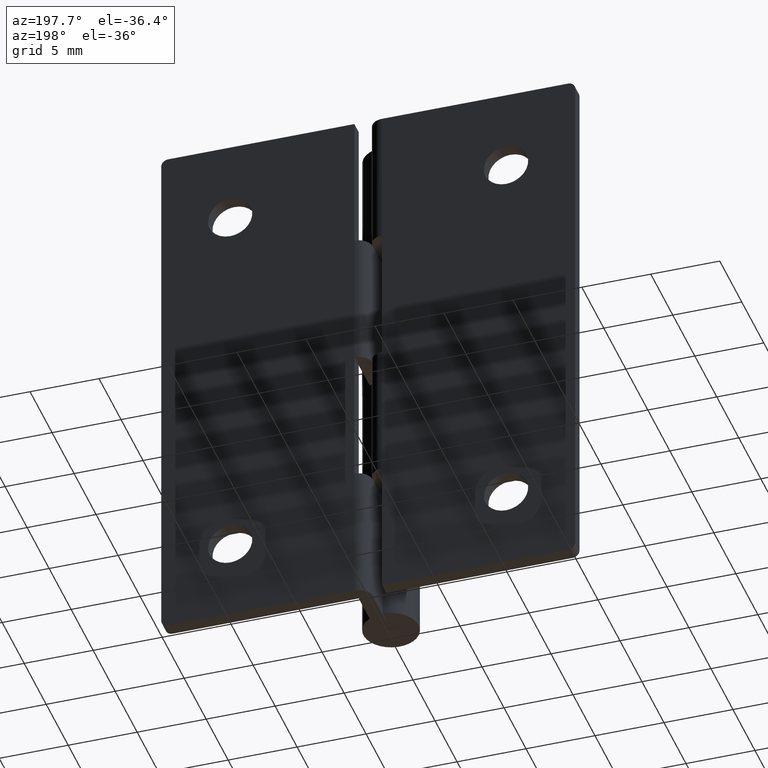
[diagram: clean part render]
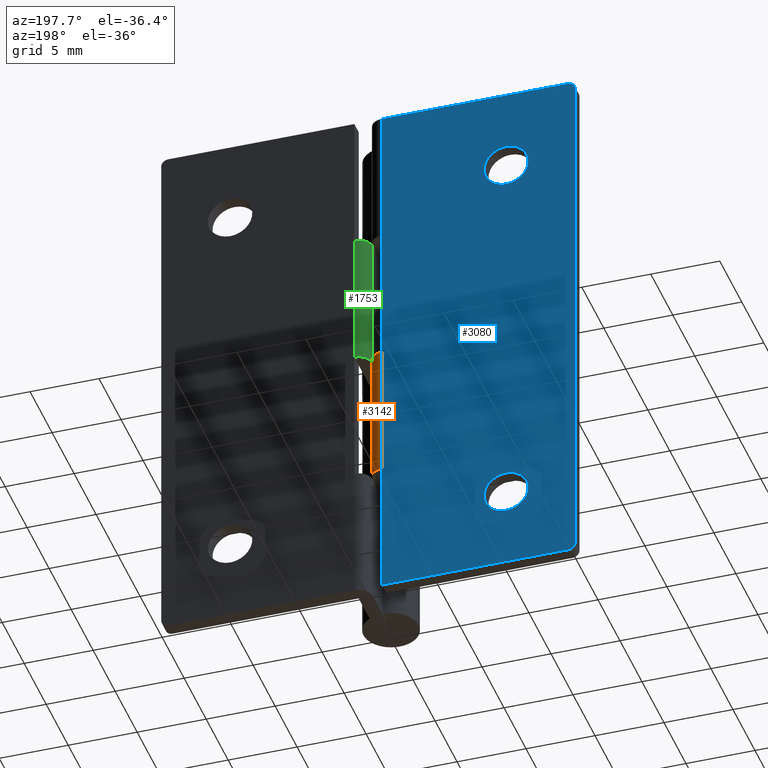
[diagram: same view with three faces highlighted in distinct colors, each labeled with its STEP entity id]
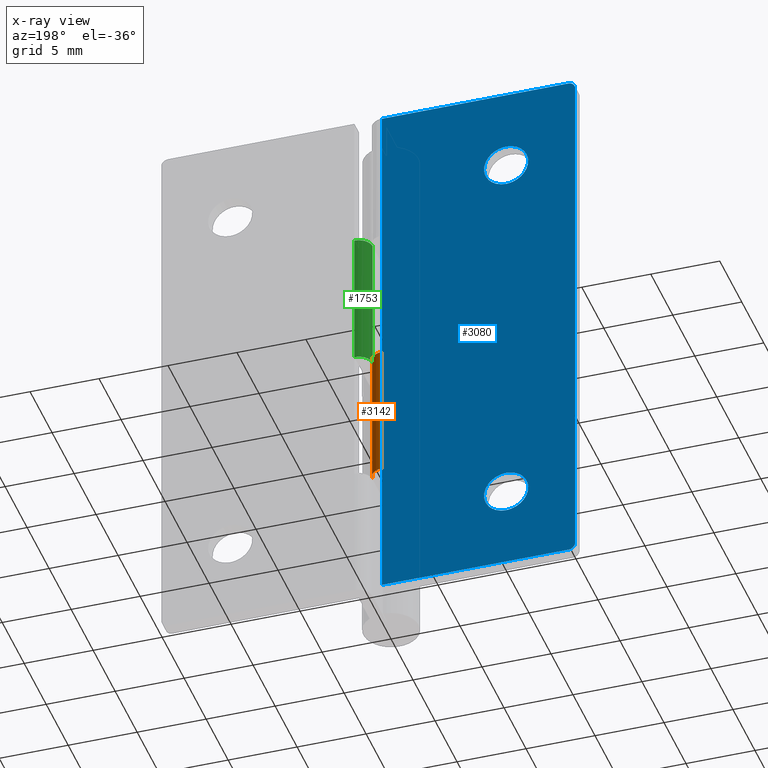
[diagram: x-ray of the same camera — body ghosted, the three highlighted faces saturated]
A machine part, auxiliary view with three faces highlighted in distinct colors.
The next image is the same camera in x-ray (body ghosted, the three faces saturated) — at least one of them is partly hidden behind the body in this view.
Their STEP definitions:

[orange] entity #3142 — the highlighted face is a freeform B-spline surface patch.
#2393=CARTESIAN_POINT('',(-1.000003999999976,5.200000000000000,9.999991999999999));
#2394=VERTEX_POINT('',#2393);
#2400=CARTESIAN_POINT('',(-4.336809E-016,4.200000000000000,9.999991999999999));
#2401=VERTEX_POINT('',#2400);
#2402=CARTESIAN_POINT('',(-1.000003999999976,5.200000000000000,9.999991999999999));
#2403=CARTESIAN_POINT('',(-0.585789266056841,5.200001656850925,9.999991999999999));
#2404=CARTESIAN_POINT('',(-0.292894633028421,4.907108195398688,9.999991999999999));
#2405=CARTESIAN_POINT('',(0.0,4.614214733946447,9.999991999999999));
#2406=CARTESIAN_POINT('',(0.0,4.200000000000000,9.999991999999999));
#2414=(BOUNDED_CURVE()B_SPLINE_CURVE(2,(#2402,#2403,#2404,#2405,#2406),.UNSPECIFIED.,.F.,.U.)B_SPLINE_CURVE_WITH_KNOTS((3,2,3),(0.0,0.500000000000000,1.0),.UNSPECIFIED.)CURVE()GEOMETRIC_REPRESENTATION_ITEM()RATIONAL_B_SPLINE_CURVE((1.0,0.923879149827395,1.0,0.923879149827395,1.0))REPRESENTATION_ITEM(''));
#2415=EDGE_CURVE('',#2394,#2401,#2414,.T.);
#2654=CARTESIAN_POINT('',(-4.336809E-016,4.200000000000000,20.0));
#2655=VERTEX_POINT('',#2654);
#2661=CARTESIAN_POINT('',(-1.000003999999976,5.200000000000000,20.0));
#2662=VERTEX_POINT('',#2661);
#2663=CARTESIAN_POINT('',(-1.000003999999976,5.200000000000000,20.0));
#2664=CARTESIAN_POINT('',(-0.585789266056841,5.200001656850925,20.000000000000004));
#2665=CARTESIAN_POINT('',(-0.292894633028421,4.907108195398688,20.0));
#2666=CARTESIAN_POINT('',(0.0,4.614214733946447,20.000000000000004));
#2667=CARTESIAN_POINT('',(0.0,4.200000000000000,20.0));
#2675=(BOUNDED_CURVE()B_SPLINE_CURVE(2,(#2663,#2664,#2665,#2666,#2667),.UNSPECIFIED.,.F.,.U.)B_SPLINE_CURVE_WITH_KNOTS((3,2,3),(0.0,0.500000000000000,1.0),.UNSPECIFIED.)CURVE()GEOMETRIC_REPRESENTATION_ITEM()RATIONAL_B_SPLINE_CURVE((1.0,0.923879149827395,1.0,0.923879149827395,1.0))REPRESENTATION_ITEM(''));
#2676=EDGE_CURVE('',#2662,#2655,#2675,.T.);
#3060=CARTESIAN_POINT('',(-1.000003999999976,5.200000000000000,20.0));
#3061=CARTESIAN_POINT('',(-1.000003999999976,5.200000000000000,9.999991999999999));
#3062=QUASI_UNIFORM_CURVE('',1,(#3060,#3061),.UNSPECIFIED.,.F.,.U.);
#3063=EDGE_CURVE('',#2662,#2394,#3062,.T.);
#3118=CARTESIAN_POINT('',(-1.043619387365336,5.199048221581858,9.749991799999997));
#3119=CARTESIAN_POINT('',(-1.043619387365336,5.199048221581858,20.256250205000001));
#3120=CARTESIAN_POINT('',(0.076060701200072,5.247934510004509,9.749991799999997));
#3121=CARTESIAN_POINT('',(0.076060701200072,5.247934510004509,20.256250205000004));
#3122=CARTESIAN_POINT('',(-0.002457113918337,4.129941521370586,9.749991799999997));
#3123=CARTESIAN_POINT('',(-0.002457113918337,4.129941521370586,20.256250205000001));
#3131=(BOUNDED_SURFACE()B_SPLINE_SURFACE(1,2,((#3118,#3120,#3122),(#3119,#3121,#3123)),.UNSPECIFIED.,.F.,.F.,.U.)B_SPLINE_SURFACE_WITH_KNOTS((2,2),(3,3),(0.0,10.506258405000009),(0.0,0.994386852711532),.UNSPECIFIED.)GEOMETRIC_REPRESENTATION_ITEM()RATIONAL_B_SPLINE_SURFACE(((1.0,0.664513811577279,0.996233733222273),(1.0,0.664513811577279,0.996233733222273)))REPRESENTATION_ITEM('')SURFACE());
#3132=ORIENTED_EDGE('',*,*,#2415,.F.);
#3133=ORIENTED_EDGE('',*,*,#3063,.F.);
#3134=ORIENTED_EDGE('',*,*,#2676,.T.);
#3135=CARTESIAN_POINT('',(-4.336809E-016,4.200000000000000,9.999991999999999));
#3136=CARTESIAN_POINT('',(-4.336809E-016,4.200000000000000,20.0));
#3137=QUASI_UNIFORM_CURVE('',1,(#3135,#3136),.UNSPECIFIED.,.F.,.U.);
#3138=EDGE_CURVE('',#2401,#2655,#3137,.T.);
#3139=ORIENTED_EDGE('',*,*,#3138,.F.);
#3140=EDGE_LOOP('',(#3132,#3133,#3134,#3139));
#3141=FACE_OUTER_BOUND('',#3140,.T.);
#3142=ADVANCED_FACE('',(#3141),#3131,.T.);

[blue] entity #3080 — the highlighted face is a freeform B-spline surface patch.
#1890=CARTESIAN_POINT('',(-10.0,5.200000000000000,35.600008000000003));
#1891=VERTEX_POINT('',#1890);
#1892=CARTESIAN_POINT('',(-11.595067733972201,5.200000000000001,34.125542553174803));
#1893=VERTEX_POINT('',#1892);
#1894=CARTESIAN_POINT('',(-10.0,5.200000000000000,35.600008000000003));
#1895=CARTESIAN_POINT('',(-11.479024786634074,5.200000000000001,35.600007999999995));
#1896=CARTESIAN_POINT('',(-11.595067733972201,5.200000000000001,34.125542553174796));
#1904=(BOUNDED_CURVE()B_SPLINE_CURVE(2,(#1894,#1895,#1896),.UNSPECIFIED.,.F.,.U.)B_SPLINE_CURVE_WITH_KNOTS((3,3),(0.0,0.236331300630565),.UNSPECIFIED.)CURVE()GEOMETRIC_REPRESENTATION_ITEM()RATIONAL_B_SPLINE_CURVE((1.0,0.723120658607777,0.969723356167220))REPRESENTATION_ITEM(''));
#1905=EDGE_CURVE('',#1891,#1893,#1904,.T.);
#1907=CARTESIAN_POINT('',(-8.404932266027803,5.199999999999999,33.874473446825213));
#1908=VERTEX_POINT('',#1907);
#1909=CARTESIAN_POINT('',(-8.404932266027803,5.199999999999999,33.874473446825206));
#1910=CARTESIAN_POINT('',(-8.400000000000000,5.200000000000001,33.937143828777430));
#1911=CARTESIAN_POINT('',(-8.400000000000000,5.200000000000000,34.000008000000001));
#1912=CARTESIAN_POINT('',(-8.400000000000000,5.199999999999999,35.600007999999995));
#1913=CARTESIAN_POINT('',(-10.0,5.200000000000000,35.600008000000003));
#1921=(BOUNDED_CURVE()B_SPLINE_CURVE(2,(#1909,#1910,#1911,#1912,#1913),.UNSPECIFIED.,.F.,.U.)B_SPLINE_CURVE_WITH_KNOTS((3,2,3),(0.736331300630565,0.750000000000000,1.0),.UNSPECIFIED.)CURVE()GEOMETRIC_REPRESENTATION_ITEM()RATIONAL_B_SPLINE_CURVE((0.969723356167220,0.983986122578771,1.0,0.707106781186548,1.0))REPRESENTATION_ITEM(''));
#1922=EDGE_CURVE('',#1908,#1891,#1921,.T.);
#1989=CARTESIAN_POINT('',(-10.0,5.200000000000000,32.400008000000000));
#1990=VERTEX_POINT('',#1989);
#1991=CARTESIAN_POINT('',(-11.595067733972199,5.200000000000002,34.125542553174796));
#1992=CARTESIAN_POINT('',(-11.600000000000000,5.200000000000000,34.062872171222565));
#1993=CARTESIAN_POINT('',(-11.600000000000000,5.200000000000000,34.000008000000001));
#1994=CARTESIAN_POINT('',(-11.600000000000001,5.199999999999999,32.400008000000000));
#1995=CARTESIAN_POINT('',(-10.0,5.200000000000000,32.400008000000000));
#2003=(BOUNDED_CURVE()B_SPLINE_CURVE(2,(#1991,#1992,#1993,#1994,#1995),.UNSPECIFIED.,.F.,.U.)B_SPLINE_CURVE_WITH_KNOTS((3,2,3),(0.236331300630565,0.250000000000000,0.500000000000000),.UNSPECIFIED.)CURVE()GEOMETRIC_REPRESENTATION_ITEM()RATIONAL_B_SPLINE_CURVE((0.969723356167220,0.983986122578771,1.0,0.707106781186548,1.0))REPRESENTATION_ITEM(''));
#2004=EDGE_CURVE('',#1893,#1990,#2003,.T.);
#2038=CARTESIAN_POINT('',(-10.0,5.200000000000000,32.400008000000000));
#2039=CARTESIAN_POINT('',(-8.520975213365921,5.200000000000000,32.400008000000000));
#2040=CARTESIAN_POINT('',(-8.404932266027803,5.199999999999999,33.874473446825206));
#2048=(BOUNDED_CURVE()B_SPLINE_CURVE(2,(#2038,#2039,#2040),.UNSPECIFIED.,.F.,.U.)B_SPLINE_CURVE_WITH_KNOTS((3,3),(0.500000000000000,0.736331300630566),.UNSPECIFIED.)CURVE()GEOMETRIC_REPRESENTATION_ITEM()RATIONAL_B_SPLINE_CURVE((1.0,0.723120658607776,0.969723356167222))REPRESENTATION_ITEM(''));
#2049=EDGE_CURVE('',#1990,#1908,#2048,.T.);
#2072=CARTESIAN_POINT('',(-10.0,5.200000000000000,7.600000000000000));
#2073=VERTEX_POINT('',#2072);
#2074=CARTESIAN_POINT('',(-11.595067733972201,5.200000000000001,6.125534553174797));
#2075=VERTEX_POINT('',#2074);
#2076=CARTESIAN_POINT('',(-10.0,5.200000000000000,7.600000000000000));
#2077=CARTESIAN_POINT('',(-11.479024786634076,5.200000000000001,7.599999999999999));
#2078=CARTESIAN_POINT('',(-11.595067733972201,5.200000000000001,6.125534553174797));
#2086=(BOUNDED_CURVE()B_SPLINE_CURVE(2,(#2076,#2077,#2078),.UNSPECIFIED.,.F.,.U.)B_SPLINE_CURVE_WITH_KNOTS((3,3),(0.0,0.236331300630565),.UNSPECIFIED.)CURVE()GEOMETRIC_REPRESENTATION_ITEM()RATIONAL_B_SPLINE_CURVE((1.0,0.723120658607776,0.969723356167220))REPRESENTATION_ITEM(''));
#2087=EDGE_CURVE('',#2073,#2075,#2086,.T.);
#2089=CARTESIAN_POINT('',(-8.404932266027803,5.200000000000000,5.874465446825204));
#2090=VERTEX_POINT('',#2089);
#2091=CARTESIAN_POINT('',(-8.404932266027803,5.199999999999999,5.874465446825204));
#2092=CARTESIAN_POINT('',(-8.400000000000000,5.200000000000000,5.937135828777437));
#2093=CARTESIAN_POINT('',(-8.400000000000000,5.200000000000000,6.0));
#2094=CARTESIAN_POINT('',(-8.400000000000000,5.199999999999999,7.600000000000000));
#2095=CARTESIAN_POINT('',(-10.0,5.200000000000000,7.600000000000000));
#2103=(BOUNDED_CURVE()B_SPLINE_CURVE(2,(#2091,#2092,#2093,#2094,#2095),.UNSPECIFIED.,.F.,.U.)B_SPLINE_CURVE_WITH_KNOTS((3,2,3),(0.736331300630565,0.750000000000000,1.0),.UNSPECIFIED.)CURVE()GEOMETRIC_REPRESENTATION_ITEM()RATIONAL_B_SPLINE_CURVE((0.969723356167221,0.983986122578771,1.0,0.707106781186548,1.0))REPRESENTATION_ITEM(''));
#2104=EDGE_CURVE('',#2090,#2073,#2103,.T.);
#2171=CARTESIAN_POINT('',(-10.0,5.200000000000000,4.400000000000000));
#2172=VERTEX_POINT('',#2171);
#2173=CARTESIAN_POINT('',(-11.595067733972202,5.200000000000001,6.125534553174797));
#2174=CARTESIAN_POINT('',(-11.600000000000005,5.200000000000000,6.062864171222564));
#2175=CARTESIAN_POINT('',(-11.600000000000000,5.200000000000000,6.0));
#2176=CARTESIAN_POINT('',(-11.600000000000001,5.199999999999999,4.400000000000001));
#2177=CARTESIAN_POINT('',(-10.0,5.200000000000000,4.400000000000000));
#2185=(BOUNDED_CURVE()B_SPLINE_CURVE(2,(#2173,#2174,#2175,#2176,#2177),.UNSPECIFIED.,.F.,.U.)B_SPLINE_CURVE_WITH_KNOTS((3,2,3),(0.236331300630565,0.250000000000000,0.500000000000000),.UNSPECIFIED.)CURVE()GEOMETRIC_REPRESENTATION_ITEM()RATIONAL_B_SPLINE_CURVE((0.969723356167220,0.983986122578771,1.0,0.707106781186548,1.0))REPRESENTATION_ITEM(''));
#2186=EDGE_CURVE('',#2075,#2172,#2185,.T.);
#2220=CARTESIAN_POINT('',(-10.0,5.200000000000000,4.400000000000000));
#2221=CARTESIAN_POINT('',(-8.520975213365921,5.200000000000000,4.400000000000001));
#2222=CARTESIAN_POINT('',(-8.404932266027803,5.200000000000001,5.874465446825204));
#2230=(BOUNDED_CURVE()B_SPLINE_CURVE(2,(#2220,#2221,#2222),.UNSPECIFIED.,.F.,.U.)B_SPLINE_CURVE_WITH_KNOTS((3,3),(0.500000000000000,0.736331300630566),.UNSPECIFIED.)CURVE()GEOMETRIC_REPRESENTATION_ITEM()RATIONAL_B_SPLINE_CURVE((1.0,0.723120658607776,0.969723356167222))REPRESENTATION_ITEM(''));
#2231=EDGE_CURVE('',#2172,#2090,#2230,.T.);
#2267=CARTESIAN_POINT('',(-14.500000000000000,5.200000000000000,40.000007999999987));
#2268=VERTEX_POINT('',#2267);
#2274=CARTESIAN_POINT('',(-15.0,5.200000000000000,39.500008000000001));
#2275=VERTEX_POINT('',#2274);
#2276=CARTESIAN_POINT('',(-15.0,5.200000000000000,39.500008000000001));
#2277=CARTESIAN_POINT('',(-15.000000000000009,5.199999999999999,40.000008000000015));
#2278=CARTESIAN_POINT('',(-14.500000000000000,5.200000000000000,40.000008000000001));
#2286=(BOUNDED_CURVE()B_SPLINE_CURVE(2,(#2276,#2277,#2278),.UNSPECIFIED.,.F.,.U.)CURVE()GEOMETRIC_REPRESENTATION_ITEM()QUASI_UNIFORM_CURVE()RATIONAL_B_SPLINE_CURVE((1.0,0.707106781186548,1.0))REPRESENTATION_ITEM(''));
#2287=EDGE_CURVE('',#2275,#2268,#2286,.T.);
#2328=CARTESIAN_POINT('',(-15.0,5.200000000000000,0.499999999999945));
#2329=VERTEX_POINT('',#2328);
#2335=CARTESIAN_POINT('',(-14.500000000000000,5.200000000000000,0.0));
#2336=VERTEX_POINT('',#2335);
#2337=CARTESIAN_POINT('',(-14.500000000000000,5.200000000000000,0.0));
#2338=CARTESIAN_POINT('',(-14.999999999999948,5.200000000000001,0.0));
#2339=CARTESIAN_POINT('',(-15.0,5.200000000000000,0.499999999999945));
#2347=(BOUNDED_CURVE()B_SPLINE_CURVE(2,(#2337,#2338,#2339),.UNSPECIFIED.,.F.,.U.)CURVE()GEOMETRIC_REPRESENTATION_ITEM()QUASI_UNIFORM_CURVE()RATIONAL_B_SPLINE_CURVE((1.0,0.707106781186586,1.0))REPRESENTATION_ITEM(''));
#2348=EDGE_CURVE('',#2336,#2329,#2347,.T.);
#2393=CARTESIAN_POINT('',(-1.000003999999976,5.200000000000000,9.999991999999999));
#2394=VERTEX_POINT('',#2393);
#2480=CARTESIAN_POINT('',(-1.000003999999976,5.200000000000000,0.0));
#2481=VERTEX_POINT('',#2480);
#2487=CARTESIAN_POINT('',(-1.000003999999976,5.200000000000000,0.0));
#2488=CARTESIAN_POINT('',(-1.000003999999976,5.200000000000000,9.999991999999999));
#2489=QUASI_UNIFORM_CURVE('',1,(#2487,#2488),.UNSPECIFIED.,.F.,.U.);
#2490=EDGE_CURVE('',#2481,#2394,#2489,.T.);
#2531=CARTESIAN_POINT('',(-1.0,5.200000000000000,30.0));
#2532=VERTEX_POINT('',#2531);
#2661=CARTESIAN_POINT('',(-1.000003999999976,5.200000000000000,20.0));
#2662=VERTEX_POINT('',#2661);
#2725=CARTESIAN_POINT('',(-1.000003999999976,5.200000000000000,20.0));
#2726=CARTESIAN_POINT('',(-1.0,5.200000000000000,30.0));
#2727=QUASI_UNIFORM_CURVE('',1,(#2725,#2726),.UNSPECIFIED.,.F.,.U.);
#2728=EDGE_CURVE('',#2662,#2532,#2727,.T.);
#2749=CARTESIAN_POINT('',(-1.0,5.200000000000000,40.000007999999987));
#2750=VERTEX_POINT('',#2749);
#2751=CARTESIAN_POINT('',(-1.0,5.200000000000000,40.000007999999987));
#2752=CARTESIAN_POINT('',(-1.0,5.200000000000000,30.0));
#2753=QUASI_UNIFORM_CURVE('',1,(#2751,#2752),.UNSPECIFIED.,.F.,.U.);
#2754=EDGE_CURVE('',#2750,#2532,#2753,.T.);
#2784=CARTESIAN_POINT('',(-14.500000000000000,5.200000000000000,40.000007999999987));
#2785=CARTESIAN_POINT('',(-1.0,5.200000000000000,40.000007999999987));
#2786=QUASI_UNIFORM_CURVE('',1,(#2784,#2785),.UNSPECIFIED.,.F.,.U.);
#2787=EDGE_CURVE('',#2268,#2750,#2786,.T.);
#3029=CARTESIAN_POINT('',(-15.0,5.200000000000000,0.499999999999945));
#3030=CARTESIAN_POINT('',(-15.0,5.200000000000000,39.500008000000001));
#3031=QUASI_UNIFORM_CURVE('',1,(#3029,#3030),.UNSPECIFIED.,.F.,.U.);
#3032=EDGE_CURVE('',#2329,#2275,#3031,.T.);
#3044=CARTESIAN_POINT('',(-15.699299972865280,5.200000000000000,41.998007946580771));
#3045=CARTESIAN_POINT('',(-15.699299972865280,5.200000000000000,-1.998001377092523));
#3046=CARTESIAN_POINT('',(-0.300699651625456,5.200000000000000,41.998007946580771));
#3047=CARTESIAN_POINT('',(-0.300699651625456,5.200000000000000,-1.998001377092523));
#3048=B_SPLINE_SURFACE_WITH_KNOTS('',1,1,((#3044,#3046),(#3045,#3047)),.UNSPECIFIED.,.F.,.F.,.U.,(2,2),(2,2),(0.0,43.996009323673292),(0.0,15.398600321239829),.UNSPECIFIED.);
#3049=CARTESIAN_POINT('',(-14.500000000000000,5.200000000000000,0.0));
#3050=CARTESIAN_POINT('',(-1.000003999999976,5.200000000000000,0.0));
#3051=QUASI_UNIFORM_CURVE('',1,(#3049,#3050),.UNSPECIFIED.,.F.,.U.);
#3052=EDGE_CURVE('',#2336,#2481,#3051,.T.);
#3053=ORIENTED_EDGE('',*,*,#3052,.F.);
#3054=ORIENTED_EDGE('',*,*,#2348,.T.);
#3055=ORIENTED_EDGE('',*,*,#3032,.T.);
#3056=ORIENTED_EDGE('',*,*,#2287,.T.);
#3057=ORIENTED_EDGE('',*,*,#2787,.T.);
#3058=ORIENTED_EDGE('',*,*,#2754,.T.);
#3059=ORIENTED_EDGE('',*,*,#2728,.F.);
#3060=CARTESIAN_POINT('',(-1.000003999999976,5.200000000000000,20.0));
#3061=CARTESIAN_POINT('',(-1.000003999999976,5.200000000000000,9.999991999999999));
#3062=QUASI_UNIFORM_CURVE('',1,(#3060,#3061),.UNSPECIFIED.,.F.,.U.);
#3063=EDGE_CURVE('',#2662,#2394,#3062,.T.);
#3064=ORIENTED_EDGE('',*,*,#3063,.T.);
#3065=ORIENTED_EDGE('',*,*,#2490,.F.);
#3066=EDGE_LOOP('',(#3053,#3054,#3055,#3056,#3057,#3058,#3059,#3064,#3065));
#3067=FACE_OUTER_BOUND('',#3066,.T.);
#3068=ORIENTED_EDGE('',*,*,#2231,.T.);
#3069=ORIENTED_EDGE('',*,*,#2104,.T.);
#3070=ORIENTED_EDGE('',*,*,#2087,.T.);
#3071=ORIENTED_EDGE('',*,*,#2186,.T.);
#3072=EDGE_LOOP('',(#3068,#3069,#3070,#3071));
#3073=FACE_BOUND('',#3072,.T.);
#3074=ORIENTED_EDGE('',*,*,#2049,.T.);
#3075=ORIENTED_EDGE('',*,*,#1922,.T.);
#3076=ORIENTED_EDGE('',*,*,#1905,.T.);
#3077=ORIENTED_EDGE('',*,*,#2004,.T.);
#3078=EDGE_LOOP('',(#3074,#3075,#3076,#3077));
#3079=FACE_BOUND('',#3078,.T.);
#3080=ADVANCED_FACE('',(#3067,#3073,#3079),#3048,.F.);

[green] entity #1753 — the highlighted face is a freeform B-spline surface patch.
#1080=CARTESIAN_POINT('',(1.000005000000000,5.200001000000000,30.0));
#1081=VERTEX_POINT('',#1080);
#1087=CARTESIAN_POINT('',(0.000005000000001,4.200001000000000,30.0));
#1088=VERTEX_POINT('',#1087);
#1089=CARTESIAN_POINT('',(1.000005000000000,5.200001000000000,30.0));
#1090=CARTESIAN_POINT('',(0.000005000000000,5.200001000000000,30.000000000000004));
#1091=CARTESIAN_POINT('',(0.000005000000000,4.200001000000000,30.0));
#1099=(BOUNDED_CURVE()B_SPLINE_CURVE(2,(#1089,#1090,#1091),.UNSPECIFIED.,.F.,.U.)CURVE()GEOMETRIC_REPRESENTATION_ITEM()QUASI_UNIFORM_CURVE()RATIONAL_B_SPLINE_CURVE((1.0,0.707106781186548,1.0))REPRESENTATION_ITEM(''));
#1100=EDGE_CURVE('',#1081,#1088,#1099,.T.);
#1234=CARTESIAN_POINT('',(0.000005000000001,4.200001000000000,20.0));
#1235=VERTEX_POINT('',#1234);
#1241=CARTESIAN_POINT('',(1.000005000000000,5.200001000000000,20.0));
#1242=VERTEX_POINT('',#1241);
#1243=CARTESIAN_POINT('',(1.000005000000000,5.200001000000000,20.0));
#1244=CARTESIAN_POINT('',(0.000005000000000,5.200001000000000,19.999999999999996));
#1245=CARTESIAN_POINT('',(0.000005000000000,4.200001000000000,20.0));
#1253=(BOUNDED_CURVE()B_SPLINE_CURVE(2,(#1243,#1244,#1245),.UNSPECIFIED.,.F.,.U.)CURVE()GEOMETRIC_REPRESENTATION_ITEM()QUASI_UNIFORM_CURVE()RATIONAL_B_SPLINE_CURVE((1.0,0.707106781186548,1.0))REPRESENTATION_ITEM(''));
#1254=EDGE_CURVE('',#1242,#1235,#1253,.T.);
#1704=CARTESIAN_POINT('',(1.000005000000000,5.200001000000000,20.0));
#1705=CARTESIAN_POINT('',(1.000005000000000,5.200001000000000,30.0));
#1706=QUASI_UNIFORM_CURVE('',1,(#1704,#1705),.UNSPECIFIED.,.F.,.U.);
#1707=EDGE_CURVE('',#1242,#1081,#1706,.T.);
#1729=CARTESIAN_POINT('',(1.026181948307874,5.199658324975557,30.250000000000000));
#1730=CARTESIAN_POINT('',(1.026181948307874,5.199658324975557,19.743749999999999));
#1731=CARTESIAN_POINT('',(-0.074980110844140,5.228493268291477,30.250000000000011));
#1732=CARTESIAN_POINT('',(-0.074980110844140,5.228493268291477,19.743749999999999));
#1733=CARTESIAN_POINT('',(0.002480540341976,4.129680644597265,30.250000000000000));
#1734=CARTESIAN_POINT('',(0.002480540341976,4.129680644597265,19.743749999999999));
#1742=(BOUNDED_SURFACE()B_SPLINE_SURFACE(1,2,((#1729,#1731,#1733),(#1730,#1732,#1734)),.UNSPECIFIED.,.F.,.F.,.U.)B_SPLINE_SURFACE_WITH_KNOTS((2,2),(3,3),(0.0,10.506250000000010),(0.0,0.994518820358999),.UNSPECIFIED.)GEOMETRIC_REPRESENTATION_ITEM()RATIONAL_B_SPLINE_SURFACE(((1.0,0.670944160943114,0.996392771668418),(1.0,0.670944160943114,0.996392771668418)))REPRESENTATION_ITEM('')SURFACE());
#1743=ORIENTED_EDGE('',*,*,#1100,.F.);
#1744=ORIENTED_EDGE('',*,*,#1707,.F.);
#1745=ORIENTED_EDGE('',*,*,#1254,.T.);
#1746=CARTESIAN_POINT('',(0.000005000000001,4.200001000000000,30.0));
#1747=CARTESIAN_POINT('',(0.000005000000001,4.200001000000000,20.0));
#1748=QUASI_UNIFORM_CURVE('',1,(#1746,#1747),.UNSPECIFIED.,.F.,.U.);
#1749=EDGE_CURVE('',#1088,#1235,#1748,.T.);
#1750=ORIENTED_EDGE('',*,*,#1749,.F.);
#1751=EDGE_LOOP('',(#1743,#1744,#1745,#1750));
#1752=FACE_OUTER_BOUND('',#1751,.T.);
#1753=ADVANCED_FACE('',(#1752),#1742,.T.);